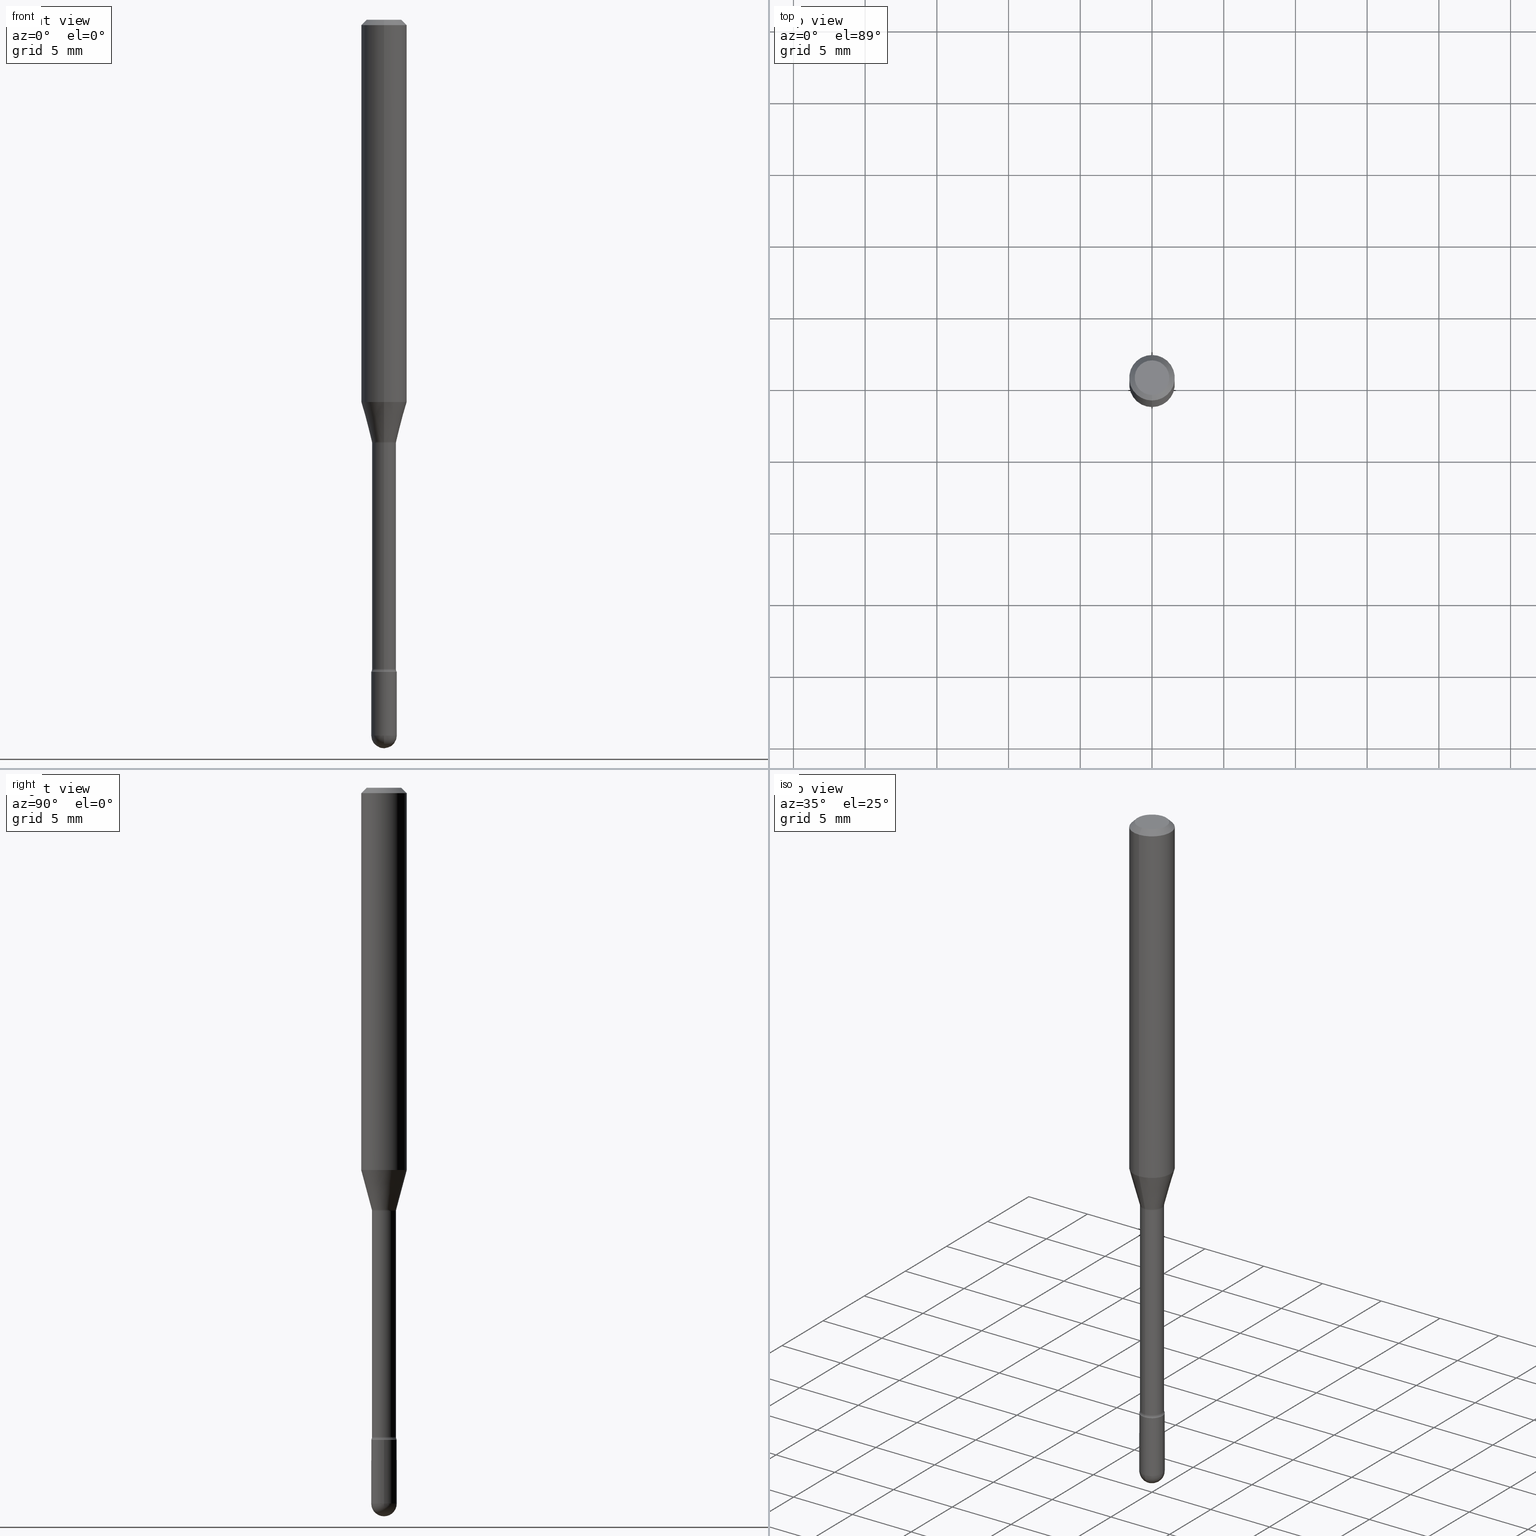
[diagram: canonical four-view strip — front | top / right | iso, engineering-drawing reading convention]
A machine part, canonical four-view strip (front | top / right | iso — engineering-drawing reading convention). The complete STEP part file that produces these views, byte-faithful:
ISO-10303-21;
HEADER;
FILE_DESCRIPTION (( 'STEP AP203' ),
    '1' );
FILE_NAME ('03739.STEP',
    '2024-04-09T20:18:21',
    ( '' ),
    ( '' ),
    'SwSTEP 2.0',
    'SolidWorks 2023',
    '' );
FILE_SCHEMA (( 'CONFIG_CONTROL_DESIGN' ));
ENDSEC;

DATA;
#1 = ORIENTED_EDGE ( 'NONE', *, *, #135, .T. ) ;
#2 = CONICAL_SURFACE ( 'NONE', #402, 0.03341111260566397706, 0.2617993877991501850 ) ;
#3 = DIRECTION ( 'NONE',  ( 0.000000000000000000, 0.000000000000000000, 1.000000000000000000 ) ) ;
#4 = AXIS2_PLACEMENT_3D ( 'NONE', #103, #432, #221 ) ;
#5 = CARTESIAN_POINT ( 'NONE',  ( -0.03500000000000000333, 2.486899575160350887E-16, -1.721627281589217108E-30 ) ) ;
#6 = APPROVAL_PERSON_ORGANIZATION ( #113, #18, #504 ) ;
#7 = EDGE_LOOP ( 'NONE', ( #16, #476 ) ) ;
#8 = APPLICATION_PROTOCOL_DEFINITION ( 'international standard', 'config_control_design', 1994, #555 ) ;
#9 = DIRECTION ( 'NONE',  ( 6.982962677686265922E-15, 1.000000000000000000, -3.483106191921935554E-15 ) ) ;
#10 = VERTEX_POINT ( 'NONE', #205 ) ;
#11 = EDGE_LOOP ( 'NONE', ( #324, #106, #195, #124 ) ) ;
#12 = DIRECTION ( 'NONE',  ( 1.000000000000000000, -6.982962677686265922E-15, 4.876176775795936353E-29 ) ) ;
#13 = FACE_OUTER_BOUND ( 'NONE', #479, .T. ) ;
#14 = CONICAL_SURFACE ( 'NONE', #247, 0.06250000000000000000, 0.7853981633974483900 ) ;
#15 = AXIS2_PLACEMENT_3D ( 'NONE', #399, #351, #526 ) ;
#16 = ORIENTED_EDGE ( 'NONE', *, *, #246, .F. ) ;
#17 = LOCAL_TIME ( 16, 18, 21.00000000000000000, #161 ) ;
#18 = APPROVAL ( #333, 'UNSPECIFIED' ) ;
#19 = EDGE_CURVE ( 'NONE', #10, #349, #251, .T. ) ;
#20 = DIRECTION ( 'NONE',  ( -6.982962677686265922E-15, -1.000000000000000000, 3.491462374089928749E-15 ) ) ;
#21 = ORIENTED_EDGE ( 'NONE', *, *, #77, .T. ) ;
#22 = AXIS2_PLACEMENT_3D ( 'NONE', #517, #133, #272 ) ;
#23 = VERTEX_POINT ( 'NONE', #253 ) ;
#24 = CARTESIAN_POINT ( 'NONE',  ( 2.566609944677887031E-29, -3.664399030748884908E-15, -1.049531296095961519 ) ) ;
#25 = VERTEX_POINT ( 'NONE', #209 ) ;
#26 = ADVANCED_FACE ( 'NONE', ( #373 ), #469, .F. ) ;
#27 = DIRECTION ( 'NONE',  ( -6.982962677686265922E-15, -1.000000000000000000, 0.000000000000000000 ) ) ;
#28 = CARTESIAN_POINT ( 'NONE',  ( 4.440892098500625669E-16, 0.06250000000000000000, 2.598570005106255658E-16 ) ) ;
#29 = CARTESIAN_POINT ( 'NONE',  ( 4.805346204153793345E-29, -6.860760830826780393E-15, -1.964999999999999858 ) ) ;
#30 = EDGE_CURVE ( 'NONE', #23, #349, #259, .T. ) ;
#31 = PERSON_AND_ORGANIZATION ( #334, #111 ) ;
#32 = AXIS2_PLACEMENT_3D ( 'NONE', #412, #200, #338 ) ;
#33 = TOROIDAL_SURFACE ( 'NONE', #453, 0.04790000000000007446, 0.01500000000000008792 ) ;
#34 = EDGE_CURVE ( 'NONE', #47, #342, #505, .T. ) ;
#35 = EDGE_LOOP ( 'NONE', ( #107, #51, #100, #537 ) ) ;
#36 = ADVANCED_FACE ( 'NONE', ( #72 ), #282, .T. ) ;
#37 = DIRECTION ( 'NONE',  ( -2.445482049201527511E-29, 3.491462374089927960E-15, 1.000000000000000000 ) ) ;
#38 = DIRECTION ( 'NONE',  ( -2.445468806185136597E-29, 3.491481338843145583E-15, 1.000000000000000000 ) ) ;
#39 = ORIENTED_EDGE ( 'NONE', *, *, #149, .T. ) ;
#40 = CIRCLE ( 'NONE', #389, 0.04749999999999999362 ) ;
#41 = AXIS2_PLACEMENT_3D ( 'NONE', #489, #146, #482 ) ;
#42 = DIRECTION ( 'NONE',  ( -6.982962677686265922E-15, -1.000000000000000000, 3.483106191921935554E-15 ) ) ;
#43 = ORIENTED_EDGE ( 'NONE', *, *, #416, .F. ) ;
#44 = VERTEX_POINT ( 'NONE', #186 ) ;
#45 = DIRECTION ( 'NONE',  ( -6.982962677686266711E-15, -1.000000000000000000, 4.088232597799138123E-15 ) ) ;
#46 = DIRECTION ( 'NONE',  ( -6.982962677686266711E-15, -1.000000000000000000, 3.491462374089928354E-15 ) ) ;
#47 = VERTEX_POINT ( 'NONE', #478 ) ;
#48 = ADVANCED_FACE ( 'NONE', ( #430 ), #472, .T. ) ;
#49 = SPHERICAL_SURFACE ( 'NONE', #156, 0.03500000000000001721 ) ;
#50 = DIRECTION ( 'NONE',  ( 1.000000000000000000, -6.982962677686276966E-15, 0.000000000000000000 ) ) ;
#51 = ORIENTED_EDGE ( 'NONE', *, *, #128, .T. ) ;
#52 = ORIENTED_EDGE ( 'NONE', *, *, #457, .F. ) ;
#53 = VECTOR ( 'NONE', #393, 39.37007874015748143 ) ;
#54 = CIRCLE ( 'NONE', #474, 0.06250000000000000000 ) ;
#55 = EDGE_LOOP ( 'NONE', ( #356, #347 ) ) ;
#56 = ADVANCED_BREP_SHAPE_REPRESENTATION ( '03739', ( #450, #440, #354 ), #524 ) ;
#57 = ORIENTED_EDGE ( 'NONE', *, *, #452, .F. ) ;
#58 = CARTESIAN_POINT ( 'NONE',  ( 0.000000000000000000, 0.000000000000000000, 0.000000000000000000 ) ) ;
#59 = VERTEX_POINT ( 'NONE', #86 ) ;
#60 = EDGE_CURVE ( 'NONE', #318, #243, #126, .T. ) ;
#61 = CARTESIAN_POINT ( 'NONE',  ( 3.403499704291320534E-16, 0.04789999999999385027, -1.782345589506696193 ) ) ;
#62 = AXIS2_PLACEMENT_3D ( 'NONE', #71, #546, #332 ) ;
#63 = CIRCLE ( 'NONE', #202, 0.06250000000000000000 ) ;
#64 = DIRECTION ( 'NONE',  ( -2.445482049201527511E-29, 3.491462374089927960E-15, 1.000000000000000000 ) ) ;
#65 = DIRECTION ( 'NONE',  ( -2.445482049201527511E-29, 3.491462374089927960E-15, 1.000000000000000000 ) ) ;
#66 = DIRECTION ( 'NONE',  ( -4.851104656540964275E-15, -0.7071067811865500152, -0.7071067811865450192 ) ) ;
#67 = CARTESIAN_POINT ( 'NONE',  ( -1.169113584055446105E-44, 1.669184350826100908E-30, 4.780733988912460139E-16 ) ) ;
#68 = DIRECTION ( 'NONE',  ( 4.937700262164548042E-15, 0.7071067811865451302, -0.7071067811865499042 ) ) ;
#69 = FACE_OUTER_BOUND ( 'NONE', #310, .T. ) ;
#70 = VECTOR ( 'NONE', #68, 39.37007874015748143 ) ;
#71 = CARTESIAN_POINT ( 'NONE',  ( 4.805346204153793345E-29, -6.860760830826780393E-15, -1.964999999999999858 ) ) ;
#72 = FACE_OUTER_BOUND ( 'NONE', #97, .T. ) ;
#73 = DIRECTION ( 'NONE',  ( -6.982962677686265922E-15, -1.000000000000000000, 4.370956789862821150E-15 ) ) ;
#74 = DIRECTION ( 'NONE',  ( -2.445482049201527511E-29, 3.491462374089927960E-15, 1.000000000000000000 ) ) ;
#75 = CARTESIAN_POINT ( 'NONE',  ( 2.832094424435664218E-29, -4.043436395705936582E-15, -1.158092501787272965 ) ) ;
#76 = CC_DESIGN_PERSON_AND_ORGANIZATION_ASSIGNMENT ( #442, #228, ( #287 ) ) ;
#77 = EDGE_CURVE ( 'NONE', #44, #318, #194, .T. ) ;
#78 = CIRCLE ( 'NONE', #119, 0.01500000000000008792 ) ;
#79 = EDGE_LOOP ( 'NONE', ( #227, #21, #138, #43, #527 ) ) ;
#80 = PERSON_AND_ORGANIZATION ( #334, #111 ) ;
#81 = AXIS2_PLACEMENT_3D ( 'NONE', #24, #463, #73 ) ;
#82 = AXIS2_PLACEMENT_3D ( 'NONE', #29, #341, #108 ) ;
#83 = CC_DESIGN_PERSON_AND_ORGANIZATION_ASSIGNMENT ( #31, #388, ( #445 ) ) ;
#84 = SECURITY_CLASSIFICATION_LEVEL ( 'unclassified' ) ;
#85 = EDGE_CURVE ( 'NONE', #308, #465, #255, .T. ) ;
#86 = CARTESIAN_POINT ( 'NONE',  ( 0.03500000000000000333, -6.799659907397025402E-15, -1.964999999999999858 ) ) ;
#87 = CARTESIAN_POINT ( 'NONE',  ( 4.358670540980283234E-29, -6.223026365132013835E-15, -1.782345589506695971 ) ) ;
#88 = VERTEX_POINT ( 'NONE', #312 ) ;
#89 = DIRECTION ( 'NONE',  ( -6.982962677686266711E-15, -1.000000000000000000, 4.151744671222284594E-15 ) ) ;
#90 = CIRCLE ( 'NONE', #415, 0.03500000000000000333 ) ;
#91 = DIRECTION ( 'NONE',  ( -2.445482049201527511E-29, 3.491462374089927960E-15, 1.000000000000000000 ) ) ;
#92 = DIRECTION ( 'NONE',  ( -2.445468806185136597E-29, 3.491481338843145583E-15, 1.000000000000000000 ) ) ;
#93 = EDGE_CURVE ( 'NONE', #25, #10, #40, .T. ) ;
#94 = ORIENTED_EDGE ( 'NONE', *, *, #457, .T. ) ;
#95 = PRODUCT_RELATED_PRODUCT_CATEGORY ( 'detail', '', ( #99 ) ) ;
#96 = DIRECTION ( 'NONE',  ( 1.000000000000000000, -6.982962677686276966E-15, 0.000000000000000000 ) ) ;
#97 = EDGE_LOOP ( 'NONE', ( #180, #297, #231, #501, #104 ) ) ;
#98 = ADVANCED_FACE ( 'NONE', ( #394 ), #14, .T. ) ;
#99 = PRODUCT ( '03739', '03739', '', ( #561 ) ) ;
#100 = ORIENTED_EDGE ( 'NONE', *, *, #34, .T. ) ;
#101 = CYLINDRICAL_SURFACE ( 'NONE', #421, 0.03289999999999999175 ) ;
#102 = LOCAL_TIME ( 16, 18, 21.00000000000000000, #511 ) ;
#103 = CARTESIAN_POINT ( 'NONE',  ( 3.316907271900976096E-16, 0.04749999999999999362, 3.181827022768983098E-17 ) ) ;
#104 = ORIENTED_EDGE ( 'NONE', *, *, #60, .F. ) ;
#105 = DIRECTION ( 'NONE',  ( 7.105427357601001859E-15, 1.000000000000000000, 0.000000000000000000 ) ) ;
#106 = ORIENTED_EDGE ( 'NONE', *, *, #509, .T. ) ;
#107 = ORIENTED_EDGE ( 'NONE', *, *, #30, .F. ) ;
#108 = DIRECTION ( 'NONE',  ( 1.000000000000000000, -6.982962677686276966E-15, 0.000000000000000000 ) ) ;
#109 = APPLICATION_CONTEXT ( 'configuration controlled 3d designs of mechanical parts and assemblies' ) ;
#110 = VECTOR ( 'NONE', #171, 39.37007874015748143 ) ;
#111 = ORGANIZATION ( 'UNSPECIFIED', 'UNSPECIFIED', '' ) ;
#112 = ORIENTED_EDGE ( 'NONE', *, *, #257, .T. ) ;
#113 = PERSON_AND_ORGANIZATION ( #334, #111 ) ;
#114 = CARTESIAN_POINT ( 'NONE',  ( -4.287811248607203282E-16, -0.06250000000000005551, -0.01499999999999986587 ) ) ;
#115 = APPROVAL_STATUS ( 'not_yet_approved' ) ;
#116 = ADVANCED_FACE ( 'NONE', ( #358 ), #153, .F. ) ;
#117 = DIRECTION ( 'NONE',  ( -6.982962677686265922E-15, -1.000000000000000000, 3.483106191921935554E-15 ) ) ;
#118 = CARTESIAN_POINT ( 'NONE',  ( -4.364351673553916201E-16, -0.06250000000000000000, 6.962897972718665114E-16 ) ) ;
#119 = AXIS2_PLACEMENT_3D ( 'NONE', #172, #417, #456 ) ;
#120 = VECTOR ( 'NONE', #230, 39.37007874015749564 ) ;
#121 = FACE_OUTER_BOUND ( 'NONE', #148, .T. ) ;
#122 = DATE_AND_TIME ( #449, #17 ) ;
#123 = DIRECTION ( 'NONE',  ( 1.000000000000000000, -6.982962677686276966E-15, 0.000000000000000000 ) ) ;
#124 = ORIENTED_EDGE ( 'NONE', *, *, #483, .F. ) ;
#125 = PERSON_AND_ORGANIZATION ( #334, #111 ) ;
#126 = CIRCLE ( 'NONE', #461, 0.03500000000000000333 ) ;
#127 = PRODUCT_DEFINITION_FORMATION_WITH_SPECIFIED_SOURCE ( 'ANY', '', #99, .NOT_KNOWN. ) ;
#128 = EDGE_CURVE ( 'NONE', #23, #47, #414, .T. ) ;
#129 = CARTESIAN_POINT ( 'NONE',  ( 3.668223073802311533E-31, -5.237193561134920955E-17, -0.01500000000000008271 ) ) ;
#130 = ORIENTED_EDGE ( 'NONE', *, *, #452, .T. ) ;
#131 = EDGE_CURVE ( 'NONE', #10, #25, #498, .T. ) ;
#132 = DIRECTION ( 'NONE',  ( -6.982962677686265922E-15, -1.000000000000000000, 0.000000000000000000 ) ) ;
#133 = DIRECTION ( 'NONE',  ( -2.445482049201527511E-29, 3.491462374089927960E-15, 1.000000000000000000 ) ) ;
#134 = CARTESIAN_POINT ( 'NONE',  ( 2.832094424435664218E-29, -4.043436395705936582E-15, -1.158092501787272965 ) ) ;
#135 = EDGE_CURVE ( 'NONE', #206, #249, #175, .T. ) ;
#136 = PERSON_AND_ORGANIZATION ( #334, #111 ) ;
#137 = LINE ( 'NONE', #225, #120 ) ;
#138 = ORIENTED_EDGE ( 'NONE', *, *, #512, .F. ) ;
#139 = ORIENTED_EDGE ( 'NONE', *, *, #521, .F. ) ;
#140 = AXIS2_PLACEMENT_3D ( 'NONE', #438, #560, #184 ) ;
#141 = AXIS2_PLACEMENT_3D ( 'NONE', #176, #292, #123 ) ;
#142 = CARTESIAN_POINT ( 'NONE',  ( 4.358694144612139545E-29, -6.222992563387760895E-15, -1.782345589506695971 ) ) ;
#143 = DIRECTION ( 'NONE',  ( 6.982962677686265922E-15, 1.000000000000000000, 0.000000000000000000 ) ) ;
#144 = DIRECTION ( 'NONE',  ( -6.982962677686265922E-15, -1.000000000000000000, 3.491462374089927960E-15 ) ) ;
#145 = DATE_AND_TIME ( #528, #331 ) ;
#146 = DIRECTION ( 'NONE',  ( -1.000000000000000000, 7.105427357601001070E-15, -4.926315508542082329E-29 ) ) ;
#147 = DIRECTION ( 'NONE',  ( 1.000000000000000000, 0.000000000000000000, 0.000000000000000000 ) ) ;
#148 = EDGE_LOOP ( 'NONE', ( #199, #556, #218, #369 ) ) ;
#149 = EDGE_CURVE ( 'NONE', #88, #249, #222, .T. ) ;
#150 = SHAPE_DEFINITION_REPRESENTATION ( #410, #56 ) ;
#151 = DATE_TIME_ROLE ( 'classification_date' ) ;
#152 = PERSON_AND_ORGANIZATION_ROLE ( 'design_owner' ) ;
#153 = PLANE ( 'NONE',  #4 ) ;
#154 = CARTESIAN_POINT ( 'NONE',  ( -1.169113584055446105E-44, 1.669184350826100908E-30, 4.780733988912460139E-16 ) ) ;
#155 = EDGE_LOOP ( 'NONE', ( #383, #531, #564, #159 ) ) ;
#156 = AXIS2_PLACEMENT_3D ( 'NONE', #387, #232, #348 ) ;
#157 = AXIS2_PLACEMENT_3D ( 'NONE', #212, #278, #496 ) ;
#158 = CARTESIAN_POINT ( 'NONE',  ( 2.486899575160792649E-16, 0.03499999999999380690, -1.790000000000000258 ) ) ;
#159 = ORIENTED_EDGE ( 'NONE', *, *, #19, .F. ) ;
#160 = ORIENTED_EDGE ( 'NONE', *, *, #323, .T. ) ;
#161 = COORDINATED_UNIVERSAL_TIME_OFFSET ( 5, 0, .BEHIND. ) ;
#162 = DIRECTION ( 'NONE',  ( -2.445482049201527511E-29, 3.491462374089927960E-15, 1.000000000000000000 ) ) ;
#163 = LINE ( 'NONE', #214, #237 ) ;
#164 = APPROVAL_ROLE ( '' ) ;
#165 = FACE_OUTER_BOUND ( 'NONE', #481, .T. ) ;
#166 = CIRCLE ( 'NONE', #82, 0.03500000000000000333 ) ;
#167 = CC_DESIGN_APPROVAL ( #548, ( #445 ) ) ;
#168 = CARTESIAN_POINT ( 'NONE',  ( 4.377412868070734097E-29, -6.249717649620971805E-15, -1.790000000000000036 ) ) ;
#169 = PERSON_AND_ORGANIZATION ( #334, #111 ) ;
#170 = PLANE ( 'NONE',  #371 ) ;
#171 = DIRECTION ( 'NONE',  ( -2.445482049201527511E-29, 3.491462374089927960E-15, 1.000000000000000000 ) ) ;
#172 = CARTESIAN_POINT ( 'NONE',  ( -3.344839122611290224E-16, -0.04790000000000629171, -1.782345589506695749 ) ) ;
#173 = DIRECTION ( 'NONE',  ( -6.982962677686266711E-15, -1.000000000000000000, 4.088232597799138123E-15 ) ) ;
#174 = EDGE_CURVE ( 'NONE', #550, #277, #261, .T. ) ;
#175 = CIRCLE ( 'NONE', #279, 0.01499999999999999424 ) ;
#176 = CARTESIAN_POINT ( 'NONE',  ( 4.805346204153793345E-29, -6.860760830826780393E-15, -1.964999999999999858 ) ) ;
#177 = AXIS2_PLACEMENT_3D ( 'NONE', #454, #65, #542 ) ;
#178 = DESIGN_CONTEXT ( 'detailed design', #109, 'design' ) ;
#179 = CC_DESIGN_PERSON_AND_ORGANIZATION_ASSIGNMENT ( #169, #152, ( #99 ) ) ;
#180 = ORIENTED_EDGE ( 'NONE', *, *, #77, .F. ) ;
#181 = CLOSED_SHELL ( 'NONE', ( #219, #367, #197, #48, #360, #350, #336, #549, #98, #116, #204, #468, #516, #26 ) ) ;
#182 = DIRECTION ( 'NONE',  ( -2.445482049201527511E-29, 3.491462374089927960E-15, 1.000000000000000000 ) ) ;
#183 = ADVANCED_FACE ( 'NONE', ( #293 ), #376, .T. ) ;
#184 = DIRECTION ( 'NONE',  ( -6.982962677686265922E-15, -1.000000000000000000, 0.000000000000000000 ) ) ;
#185 = DIRECTION ( 'NONE',  ( 1.000000000000000000, -6.982962677686276966E-15, 0.000000000000000000 ) ) ;
#186 = CARTESIAN_POINT ( 'NONE',  ( -0.03500000000000000333, -6.306566256161970939E-15, -1.964999999999999858 ) ) ;
#187 = ORIENTED_EDGE ( 'NONE', *, *, #149, .F. ) ;
#188 = ORIENTED_EDGE ( 'NONE', *, *, #345, .F. ) ;
#189 = AXIS2_PLACEMENT_3D ( 'NONE', #268, #398, #143 ) ;
#190 = DATE_AND_TIME ( #490, #102 ) ;
#191 = CARTESIAN_POINT ( 'NONE',  ( -2.297394720958781034E-16, -0.03289999999999999175, 5.929425109988046671E-16 ) ) ;
#192 = LINE ( 'NONE', #447, #554 ) ;
#193 = ORIENTED_EDGE ( 'NONE', *, *, #131, .T. ) ;
#194 = LINE ( 'NONE', #5, #444 ) ;
#195 = ORIENTED_EDGE ( 'NONE', *, *, #397, .F. ) ;
#196 = CC_DESIGN_PERSON_AND_ORGANIZATION_ASSIGNMENT ( #125, #467, ( #127 ) ) ;
#197 = ADVANCED_FACE ( 'NONE', ( #121 ), #216, .F. ) ;
#198 = CYLINDRICAL_SURFACE ( 'NONE', #15, 0.03289999999999999175 ) ;
#199 = ORIENTED_EDGE ( 'NONE', *, *, #323, .F. ) ;
#200 = DIRECTION ( 'NONE',  ( -2.445482049201527511E-29, 3.491462374089927960E-15, 1.000000000000000000 ) ) ;
#201 = CIRCLE ( 'NONE', #507, 0.03289999999999998481 ) ;
#202 = AXIS2_PLACEMENT_3D ( 'NONE', #566, #182, #42 ) ;
#203 = ORIENTED_EDGE ( 'NONE', *, *, #135, .F. ) ;
#204 = ADVANCED_FACE ( 'NONE', ( #366 ), #170, .F. ) ;
#205 = CARTESIAN_POINT ( 'NONE',  ( 3.840629472727447874E-16, 0.04749999999999999362, -2.485923956665947374E-16 ) ) ;
#206 = VERTEX_POINT ( 'NONE', #258 ) ;
#207 = DIRECTION ( 'NONE',  ( 7.105427357600997914E-15, 1.000000000000000000, 0.000000000000000000 ) ) ;
#208 = DIRECTION ( 'NONE',  ( -2.445482049201527231E-29, 3.491462374089927960E-15, 1.000000000000000000 ) ) ;
#209 = CARTESIAN_POINT ( 'NONE',  ( -3.773273898774340269E-16, -0.04749999999999999362, 8.309652987194840546E-17 ) ) ;
#210 = AXIS2_PLACEMENT_3D ( 'NONE', #154, #486, #534 ) ;
#211 = ORIENTED_EDGE ( 'NONE', *, *, #483, .T. ) ;
#212 = CARTESIAN_POINT ( 'NONE',  ( 2.832094424435664218E-29, -4.043436395705936582E-15, -1.158092501787272965 ) ) ;
#213 = CARTESIAN_POINT ( 'NONE',  ( -2.297394720958497537E-16, -0.03290000000000405794, -1.161974787463810443 ) ) ;
#214 = CARTESIAN_POINT ( 'NONE',  ( 0.03500000000000000333, -2.444036937190193250E-16, 1.706661871528577808E-30 ) ) ;
#215 = ADVANCED_FACE ( 'NONE', ( #552 ), #335, .T. ) ;
#216 = TOROIDAL_SURFACE ( 'NONE', #270, 0.04790000000000007446, 0.01500000000000008792 ) ;
#217 = AXIS2_PLACEMENT_3D ( 'NONE', #530, #273, #239 ) ;
#218 = ORIENTED_EDGE ( 'NONE', *, *, #174, .T. ) ;
#219 = ADVANCED_FACE ( 'NONE', ( #165 ), #523, .F. ) ;
#220 = APPROVAL_STATUS ( 'not_yet_approved' ) ;
#221 = DIRECTION ( 'NONE',  ( 6.982962677686265922E-15, 1.000000000000000000, -3.491462374089927960E-15 ) ) ;
#222 = CIRCLE ( 'NONE', #309, 0.03289999999999999869 ) ;
#223 = CIRCLE ( 'NONE', #462, 0.01499999999999999424 ) ;
#224 = DIRECTION ( 'NONE',  ( -2.445482049201527511E-29, 3.491462374089927960E-15, 1.000000000000000000 ) ) ;
#225 = CARTESIAN_POINT ( 'NONE',  ( -2.333085523452963922E-16, -0.03341111260566802243, -1.158092501787272965 ) ) ;
#226 = DIRECTION ( 'NONE',  ( -2.445482049201527511E-29, 3.491462374089927960E-15, 1.000000000000000000 ) ) ;
#227 = ORIENTED_EDGE ( 'NONE', *, *, #495, .T. ) ;
#228 = PERSON_AND_ORGANIZATION_ROLE ( 'creator' ) ;
#229 = CARTESIAN_POINT ( 'NONE',  ( -4.364351673553912750E-16, -0.06250000000000005551, -0.01499999999999986587 ) ) ;
#230 = DIRECTION ( 'NONE',  ( -1.807323732225329350E-15, -0.2588190451025180194, 0.9659258262890689783 ) ) ;
#231 = ORIENTED_EDGE ( 'NONE', *, *, #491, .T. ) ;
#232 = DIRECTION ( 'NONE',  ( -1.000000000000000000, 6.982962677686265922E-15, -4.883557194083112340E-29 ) ) ;
#233 = DIRECTION ( 'NONE',  ( -2.445468806185136877E-29, 3.491481338843145188E-15, 1.000000000000000000 ) ) ;
#234 = CARTESIAN_POINT ( 'NONE',  ( 2.337685600650729025E-16, 0.03289999999999999175, 3.632042867836874593E-16 ) ) ;
#235 = ORIENTED_EDGE ( 'NONE', *, *, #392, .T. ) ;
#236 = AXIS2_PLACEMENT_3D ( 'NONE', #129, #260, #425 ) ;
#237 = VECTOR ( 'NONE', #497, 39.37007874015748143 ) ;
#238 = FACE_OUTER_BOUND ( 'NONE', #35, .T. ) ;
#239 = DIRECTION ( 'NONE',  ( 1.000000000000000000, -6.982962677686276966E-15, 0.000000000000000000 ) ) ;
#240 = ORIENTED_EDGE ( 'NONE', *, *, #436, .T. ) ;
#241 = CYLINDRICAL_SURFACE ( 'NONE', #210, 0.06250000000000000000 ) ;
#242 = DIRECTION ( 'NONE',  ( 1.839019923739599526E-15, 0.2588190451025248473, 0.9659258262890670910 ) ) ;
#243 = VERTEX_POINT ( 'NONE', #329 ) ;
#244 = DIRECTION ( 'NONE',  ( 1.000000000000000000, -7.105427357601001070E-15, 4.926315276290838979E-29 ) ) ;
#245 = ORIENTED_EDGE ( 'NONE', *, *, #475, .T. ) ;
#246 = EDGE_CURVE ( 'NONE', #277, #550, #485, .T. ) ;
#247 = AXIS2_PLACEMENT_3D ( 'NONE', #346, #434, #9 ) ;
#248 = AXIS2_PLACEMENT_3D ( 'NONE', #75, #226, #173 ) ;
#249 = VERTEX_POINT ( 'NONE', #213 ) ;
#250 = DIRECTION ( 'NONE',  ( -6.982962677686265133E-15, -1.000000000000000000, 3.491462374089927565E-15 ) ) ;
#251 = LINE ( 'NONE', #499, #70 ) ;
#252 = DIRECTION ( 'NONE',  ( 1.000000000000000000, -7.105427357601001070E-15, 4.926315276290838979E-29 ) ) ;
#253 = CARTESIAN_POINT ( 'NONE',  ( 4.440892098500882541E-16, 0.06249999999999633626, -1.049531296095961741 ) ) ;
#254 = DIRECTION ( 'NONE',  ( 1.000000000000000000, -6.982962677686265922E-15, 4.876176775795935793E-29 ) ) ;
#255 = CIRCLE ( 'NONE', #189, 0.03500000000000001721 ) ;
#256 = CIRCLE ( 'NONE', #157, 0.03341111260566397706 ) ;
#257 = EDGE_CURVE ( 'NONE', #470, #277, #78, .T. ) ;
#258 = CARTESIAN_POINT ( 'NONE',  ( -2.333085523452963922E-16, -0.03341111260566802243, -1.158092501787272965 ) ) ;
#259 = LINE ( 'NONE', #28, #110 ) ;
#260 = DIRECTION ( 'NONE',  ( 2.445482049201527511E-29, -3.491462374089927960E-15, -1.000000000000000000 ) ) ;
#261 = CIRCLE ( 'NONE', #32, 0.03500000000000000333 ) ;
#262 = CONICAL_SURFACE ( 'NONE', #403, 0.03341111260566397706, 0.2617993877991501850 ) ;
#263 = CARTESIAN_POINT ( 'NONE',  ( 4.892434153376336703E-29, -6.980819545787783111E-15, -2.000000000000000000 ) ) ;
#264 = EDGE_CURVE ( 'NONE', #25, #342, #502, .T. ) ;
#265 = DIRECTION ( 'NONE',  ( -2.445482049201527511E-29, 3.491462374089927960E-15, 1.000000000000000000 ) ) ;
#266 =( NAMED_UNIT ( * ) SI_UNIT ( $, .STERADIAN. ) SOLID_ANGLE_UNIT ( ) );
#267 = CARTESIAN_POINT ( 'NONE',  ( -0.03500000000000000333, -6.306566256161970939E-15, -1.790000000000000036 ) ) ;
#268 = CARTESIAN_POINT ( 'NONE',  ( 4.805346204153793345E-29, -6.860760830826780393E-15, -1.964999999999999858 ) ) ;
#269 = CC_DESIGN_DATE_AND_TIME_ASSIGNMENT ( #190, #151, ( #445 ) ) ;
#270 = AXIS2_PLACEMENT_3D ( 'NONE', #298, #74, #379 ) ;
#271 = CIRCLE ( 'NONE', #217, 0.03500000000000000333 ) ;
#272 = DIRECTION ( 'NONE',  ( -6.982962677686265922E-15, -1.000000000000000000, 4.370956789862821150E-15 ) ) ;
#273 = DIRECTION ( 'NONE',  ( -2.445468806185136597E-29, 3.491481338843145583E-15, 1.000000000000000000 ) ) ;
#274 = ORIENTED_EDGE ( 'NONE', *, *, #547, .F. ) ;
#275 = EDGE_LOOP ( 'NONE', ( #553, #378, #431, #540 ) ) ;
#276 = LINE ( 'NONE', #234, #508 ) ;
#277 = VERTEX_POINT ( 'NONE', #458 ) ;
#278 = DIRECTION ( 'NONE',  ( -2.445482049201527511E-29, 3.491462374089927960E-15, 1.000000000000000000 ) ) ;
#279 = AXIS2_PLACEMENT_3D ( 'NONE', #364, #286, #368 ) ;
#280 = CIRCLE ( 'NONE', #141, 0.03500000000000000333 ) ;
#281 =( LENGTH_UNIT ( ) NAMED_UNIT ( * ) SI_UNIT ( $, .METRE. ) );
#282 = CYLINDRICAL_SURFACE ( 'NONE', #299, 0.03500000000000000333 ) ;
#283 = CYLINDRICAL_SURFACE ( 'NONE', #372, 0.03500000000000000333 ) ;
#284 = CARTESIAN_POINT ( 'NONE',  ( 0.000000000000000000, 0.000000000000000000, 0.000000000000000000 ) ) ;
#285 = ORIENTED_EDGE ( 'NONE', *, *, #85, .F. ) ;
#286 = DIRECTION ( 'NONE',  ( -1.000000000000000000, 6.982962677686265922E-15, -4.883557194083112340E-29 ) ) ;
#287 = PRODUCT_DEFINITION ( 'UNKNOWN', '', #127, #178 ) ;
#288 = ADVANCED_FACE ( 'NONE', ( #69 ), #49, .T. ) ;
#289 = CARTESIAN_POINT ( 'NONE',  ( 4.377389163071394665E-29, -6.249751596529231267E-15, -1.790000000000000036 ) ) ;
#290 = CYLINDRICAL_SURFACE ( 'NONE', #177, 0.06250000000000000000 ) ;
#291 = AXIS2_PLACEMENT_3D ( 'NONE', #525, #92, #185 ) ;
#292 = DIRECTION ( 'NONE',  ( -2.445468806185136597E-29, 3.491481338843145583E-15, 1.000000000000000000 ) ) ;
#293 = FACE_OUTER_BOUND ( 'NONE', #413, .T. ) ;
#294 = DATE_TIME_ROLE ( 'creation_date' ) ;
#295 = COORDINATED_UNIVERSAL_TIME_OFFSET ( 5, 0, .BEHIND. ) ;
#296 = APPROVAL ( #115, 'UNSPECIFIED' ) ;
#297 = ORIENTED_EDGE ( 'NONE', *, *, #429, .T. ) ;
#298 = CARTESIAN_POINT ( 'NONE',  ( 4.358670540980283234E-29, -6.223026365132013835E-15, -1.782345589506695971 ) ) ;
#299 = AXIS2_PLACEMENT_3D ( 'NONE', #406, #518, #437 ) ;
#300 = DIRECTION ( 'NONE',  ( -2.445482049201527511E-29, 3.491462374089927960E-15, 1.000000000000000000 ) ) ;
#301 = CIRCLE ( 'NONE', #81, 0.06250000000000000000 ) ;
#302 = EDGE_CURVE ( 'NONE', #470, #249, #529, .T. ) ;
#303 = CC_DESIGN_PERSON_AND_ORGANIZATION_ASSIGNMENT ( #80, #464, ( #127 ) ) ;
#304 = ORIENTED_EDGE ( 'NONE', *, *, #131, .F. ) ;
#305 = CLOSED_SHELL ( 'NONE', ( #459, #183, #215, #288, #36 ) ) ;
#306 = CC_DESIGN_APPROVAL ( #296, ( #127 ) ) ;
#307 = CARTESIAN_POINT ( 'NONE',  ( 2.023649156427938517E-45, -2.889022277006922147E-31, -8.274793289732315981E-17 ) ) ;
#308 = VERTEX_POINT ( 'NONE', #263 ) ;
#309 = AXIS2_PLACEMENT_3D ( 'NONE', #466, #559, #89 ) ;
#310 = EDGE_LOOP ( 'NONE', ( #52, #544, #139, #439 ) ) ;
#311 = APPROVAL_DATE_TIME ( #145, #18 ) ;
#312 = CARTESIAN_POINT ( 'NONE',  ( 2.337685600651166843E-16, 0.03289999999999595331, -1.161974787463810888 ) ) ;
#313 = CARTESIAN_POINT ( 'NONE',  ( 3.668223073802311533E-31, -5.237193561134920955E-17, -0.01500000000000008271 ) ) ;
#314 = CARTESIAN_POINT ( 'NONE',  ( 2.412292587905979007E-16, 0.03289999999999376062, -1.782345589506695971 ) ) ;
#315 = EDGE_CURVE ( 'NONE', #470, #519, #201, .T. ) ;
#316 = ORIENTED_EDGE ( 'NONE', *, *, #509, .F. ) ;
#317 = CC_DESIGN_DATE_AND_TIME_ASSIGNMENT ( #418, #294, ( #287 ) ) ;
#318 = VERTEX_POINT ( 'NONE', #267 ) ;
#319 = CARTESIAN_POINT ( 'NONE',  ( 2.832094424435664218E-29, -4.043436395705936582E-15, -1.158092501787272965 ) ) ;
#320 = APPLICATION_PROTOCOL_DEFINITION ( 'international standard', 'config_control_design', 1994, #109 ) ;
#321 = ORIENTED_EDGE ( 'NONE', *, *, #380, .F. ) ;
#322 = AXIS2_PLACEMENT_3D ( 'NONE', #168, #423, #27 ) ;
#323 = EDGE_CURVE ( 'NONE', #519, #470, #339, .T. ) ;
#324 = ORIENTED_EDGE ( 'NONE', *, *, #547, .T. ) ;
#325 = CARTESIAN_POINT ( 'NONE',  ( 2.444036937190673962E-16, 0.03499999999999315464, -1.964999999999999858 ) ) ;
#326 = ORIENTED_EDGE ( 'NONE', *, *, #246, .T. ) ;
#327 = EDGE_LOOP ( 'NONE', ( #193, #362 ) ) ;
#328 = COORDINATED_UNIVERSAL_TIME_OFFSET ( 5, 0, .BEHIND. ) ;
#329 = CARTESIAN_POINT ( 'NONE',  ( 0.03500000000000000333, -6.494155290248250444E-15, -1.790000000000000036 ) ) ;
#330 = VECTOR ( 'NONE', #66, 39.37007874015748143 ) ;
#331 = LOCAL_TIME ( 16, 18, 21.00000000000000000, #295 ) ;
#332 = DIRECTION ( 'NONE',  ( 6.982962677686265922E-15, 1.000000000000000000, 0.000000000000000000 ) ) ;
#333 = APPROVAL_STATUS ( 'not_yet_approved' ) ;
#334 = PERSON ( 'UNSPECIFIED', 'UNSPECIFIED', 'UNSPECIFIED', ('UNSPECIFIED'), ('UNSPECIFIED'), ('UNSPECIFIED') ) ;
#335 = PLANE ( 'NONE',  #382 ) ;
#336 = ADVANCED_FACE ( 'NONE', ( #520 ), #2, .T. ) ;
#337 = DIRECTION ( 'NONE',  ( -6.982962677686265133E-15, -1.000000000000000000, 3.491462374089927565E-15 ) ) ;
#338 = DIRECTION ( 'NONE',  ( -6.982962677686265922E-15, -1.000000000000000000, 0.000000000000000000 ) ) ;
#339 = CIRCLE ( 'NONE', #140, 0.03289999999999998481 ) ;
#340 = AXIS2_PLACEMENT_3D ( 'NONE', #551, #506, #510 ) ;
#341 = DIRECTION ( 'NONE',  ( -2.445468806185136597E-29, 3.491481338843145583E-15, 1.000000000000000000 ) ) ;
#342 = VERTEX_POINT ( 'NONE', #229 ) ;
#343 = CARTESIAN_POINT ( 'NONE',  ( 4.377389163071394665E-29, -6.249751596529231267E-15, -1.790000000000000036 ) ) ;
#344 = LOCAL_TIME ( 16, 18, 21.00000000000000000, #328 ) ;
#345 = EDGE_CURVE ( 'NONE', #519, #550, #352, .T. ) ;
#346 = CARTESIAN_POINT ( 'NONE',  ( 3.668223073802311533E-31, -5.237193561134920955E-17, -0.01500000000000008271 ) ) ;
#347 = ORIENTED_EDGE ( 'NONE', *, *, #60, .T. ) ;
#348 = DIRECTION ( 'NONE',  ( 6.982962677686265922E-15, 1.000000000000000000, 0.000000000000000000 ) ) ;
#349 = VERTEX_POINT ( 'NONE', #357 ) ;
#350 = ADVANCED_FACE ( 'NONE', ( #532 ), #262, .T. ) ;
#351 = DIRECTION ( 'NONE',  ( -2.445482049201527511E-29, 3.491462374089927960E-15, 1.000000000000000000 ) ) ;
#352 = CIRCLE ( 'NONE', #543, 0.01500000000000008792 ) ;
#353 = EDGE_LOOP ( 'NONE', ( #188, #533, #112, #326 ) ) ;
#354 = AXIS2_PLACEMENT_3D ( 'NONE', #284, #3, #147 ) ;
#355 = CARTESIAN_POINT ( 'NONE',  ( 2.023649156427938517E-45, -2.889022277006922147E-31, -8.274793289732315981E-17 ) ) ;
#356 = ORIENTED_EDGE ( 'NONE', *, *, #512, .T. ) ;
#357 = CARTESIAN_POINT ( 'NONE',  ( 4.440892098500883528E-16, 0.06249999999999993755, -0.01500000000000030129 ) ) ;
#358 = FACE_OUTER_BOUND ( 'NONE', #327, .T. ) ;
#359 = ORIENTED_EDGE ( 'NONE', *, *, #30, .T. ) ;
#360 = ADVANCED_FACE ( 'NONE', ( #13 ), #290, .T. ) ;
#361 = DIRECTION ( 'NONE',  ( -6.982962677686266711E-15, -1.000000000000000000, 4.088232597799138123E-15 ) ) ;
#362 = ORIENTED_EDGE ( 'NONE', *, *, #93, .T. ) ;
#363 = AXIS2_PLACEMENT_3D ( 'NONE', #460, #64, #250 ) ;
#364 = CARTESIAN_POINT ( 'NONE',  ( -3.344839122611437642E-16, -0.04790000000000405739, -1.161974787463810665 ) ) ;
#365 = EDGE_LOOP ( 'NONE', ( #409, #160, #492, #187 ) ) ;
#366 = FACE_OUTER_BOUND ( 'NONE', #7, .T. ) ;
#367 = ADVANCED_FACE ( 'NONE', ( #484 ), #101, .T. ) ;
#368 = DIRECTION ( 'NONE',  ( -6.982962677686266711E-15, -1.000000000000000000, 0.000000000000000000 ) ) ;
#369 = ORIENTED_EDGE ( 'NONE', *, *, #257, .F. ) ;
#370 = DIRECTION ( 'NONE',  ( -6.982962677686265922E-15, -1.000000000000000000, 3.491462374089927960E-15 ) ) ;
#371 = AXIS2_PLACEMENT_3D ( 'NONE', #538, #208, #370 ) ;
#372 = AXIS2_PLACEMENT_3D ( 'NONE', #58, #411, #12 ) ;
#373 = FACE_OUTER_BOUND ( 'NONE', #407, .T. ) ;
#374 = ORIENTED_EDGE ( 'NONE', *, *, #264, .F. ) ;
#375 = CARTESIAN_POINT ( 'NONE',  ( 3.407447217031445109E-16, 0.03341111260565993862, -1.158092501787273187 ) ) ;
#376 = SPHERICAL_SURFACE ( 'NONE', #62, 0.03500000000000001721 ) ;
#377 = CARTESIAN_POINT ( 'NONE',  ( 2.841573096316353332E-29, -4.057013286636126142E-15, -1.161974787463810888 ) ) ;
#378 = ORIENTED_EDGE ( 'NONE', *, *, #503, .T. ) ;
#379 = DIRECTION ( 'NONE',  ( -6.982962677686265922E-15, -1.000000000000000000, 3.491462374089927960E-15 ) ) ;
#380 = EDGE_CURVE ( 'NONE', #342, #349, #54, .T. ) ;
#381 = CARTESIAN_POINT ( 'NONE',  ( -2.486899575159870668E-16, -0.03500000000000687284, -1.964999999999999858 ) ) ;
#382 = AXIS2_PLACEMENT_3D ( 'NONE', #289, #541, #254 ) ;
#383 = ORIENTED_EDGE ( 'NONE', *, *, #93, .F. ) ;
#384 = DIRECTION ( 'NONE',  ( -2.445468806185136597E-29, 3.491481338843145583E-15, 1.000000000000000000 ) ) ;
#385 = ORIENTED_EDGE ( 'NONE', *, *, #19, .T. ) ;
#386 =( NAMED_UNIT ( * ) PLANE_ANGLE_UNIT ( ) SI_UNIT ( $, .RADIAN. ) );
#387 = CARTESIAN_POINT ( 'NONE',  ( 4.805346204153793345E-29, -6.860760830826780393E-15, -1.964999999999999858 ) ) ;
#388 = PERSON_AND_ORGANIZATION_ROLE ( 'classification_officer' ) ;
#389 = AXIS2_PLACEMENT_3D ( 'NONE', #355, #562, #473 ) ;
#390 = APPROVAL_ROLE ( '' ) ;
#391 = CC_DESIGN_APPROVAL ( #18, ( #287 ) ) ;
#392 = EDGE_CURVE ( 'NONE', #249, #88, #557, .T. ) ;
#393 = DIRECTION ( 'NONE',  ( -2.445482049201527511E-29, 3.491462374089927960E-15, 1.000000000000000000 ) ) ;
#394 = FACE_OUTER_BOUND ( 'NONE', #488, .T. ) ;
#395 = VERTEX_POINT ( 'NONE', #375 ) ;
#396 = COORDINATED_UNIVERSAL_TIME_OFFSET ( 5, 0, .BEHIND. ) ;
#397 = EDGE_CURVE ( 'NONE', #47, #23, #301, .T. ) ;
#398 = DIRECTION ( 'NONE',  ( 1.000000000000000000, -6.982962677686265922E-15, 4.883557194083112340E-29 ) ) ;
#399 = CARTESIAN_POINT ( 'NONE',  ( -1.169113584055446105E-44, 1.669184350826100908E-30, 4.780733988912460139E-16 ) ) ;
#400 = ORIENTED_EDGE ( 'NONE', *, *, #128, .F. ) ;
#401 = DIRECTION ( 'NONE',  ( -2.445482049201527511E-29, 3.491462374089927960E-15, 1.000000000000000000 ) ) ;
#402 = AXIS2_PLACEMENT_3D ( 'NONE', #134, #91, #45 ) ;
#403 = AXIS2_PLACEMENT_3D ( 'NONE', #319, #162, #361 ) ;
#404 = ORIENTED_EDGE ( 'NONE', *, *, #34, .F. ) ;
#405 = CIRCLE ( 'NONE', #248, 0.03341111260566397706 ) ;
#406 = CARTESIAN_POINT ( 'NONE',  ( 0.000000000000000000, 0.000000000000000000, 0.000000000000000000 ) ) ;
#407 = EDGE_LOOP ( 'NONE', ( #422, #274, #1, #235 ) ) ;
#408 = LENGTH_MEASURE_WITH_UNIT ( LENGTH_MEASURE( 0.02539999999999999897 ), #281 );
#409 = ORIENTED_EDGE ( 'NONE', *, *, #503, .F. ) ;
#410 = PRODUCT_DEFINITION_SHAPE ( 'NONE', 'NONE',  #287 ) ;
#411 = DIRECTION ( 'NONE',  ( -2.445468806185136597E-29, 3.491481338843145583E-15, 1.000000000000000000 ) ) ;
#412 = CARTESIAN_POINT ( 'NONE',  ( 4.377412868070734097E-29, -6.249717649620971805E-15, -1.790000000000000036 ) ) ;
#413 = EDGE_LOOP ( 'NONE', ( #285, #94, #522, #536 ) ) ;
#414 = CIRCLE ( 'NONE', #22, 0.06250000000000000000 ) ;
#415 = AXIS2_PLACEMENT_3D ( 'NONE', #477, #384, #96 ) ;
#416 = EDGE_CURVE ( 'NONE', #59, #243, #163, .T. ) ;
#417 = DIRECTION ( 'NONE',  ( -1.000000000000000000, 6.982962677686265922E-15, -4.883557194083112340E-29 ) ) ;
#418 = DATE_AND_TIME ( #565, #514 ) ;
#419 = PERSON_AND_ORGANIZATION ( #334, #111 ) ;
#420 = AXIS2_PLACEMENT_3D ( 'NONE', #307, #224, #46 ) ;
#421 = AXIS2_PLACEMENT_3D ( 'NONE', #67, #500, #20 ) ;
#422 = ORIENTED_EDGE ( 'NONE', *, *, #436, .F. ) ;
#423 = DIRECTION ( 'NONE',  ( -2.445482049201527511E-29, 3.491462374089927960E-15, 1.000000000000000000 ) ) ;
#424 = DIRECTION ( 'NONE',  ( -2.445482049201527511E-29, 3.491462374089927960E-15, 1.000000000000000000 ) ) ;
#425 = DIRECTION ( 'NONE',  ( 6.982962677686265922E-15, 1.000000000000000000, -3.483106191921935554E-15 ) ) ;
#426 = VECTOR ( 'NONE', #300, 39.37007874015748143 ) ;
#427 = UNCERTAINTY_MEASURE_WITH_UNIT (LENGTH_MEASURE( 1.000000000000000082E-05 ), #515, 'distance_accuracy_value', 'NONE');
#428 = VERTEX_POINT ( 'NONE', #381 ) ;
#429 = EDGE_CURVE ( 'NONE', #44, #428, #280, .T. ) ;
#430 = FACE_OUTER_BOUND ( 'NONE', #155, .T. ) ;
#431 = ORIENTED_EDGE ( 'NONE', *, *, #392, .F. ) ;
#432 = DIRECTION ( 'NONE',  ( 2.445482049201527231E-29, -3.491462374089927960E-15, -1.000000000000000000 ) ) ;
#433 = CALENDAR_DATE ( 2024, 9, 4 ) ;
#434 = DIRECTION ( 'NONE',  ( 2.445482049201527511E-29, -3.491462374089927960E-15, -1.000000000000000000 ) ) ;
#435 = CIRCLE ( 'NONE', #291, 0.03500000000000000333 ) ;
#436 = EDGE_CURVE ( 'NONE', #395, #88, #223, .T. ) ;
#437 = DIRECTION ( 'NONE',  ( 1.000000000000000000, -6.982962677686265922E-15, 4.876176775795936353E-29 ) ) ;
#438 = CARTESIAN_POINT ( 'NONE',  ( 4.358694144612139545E-29, -6.222992563387760895E-15, -1.782345589506695971 ) ) ;
#439 = ORIENTED_EDGE ( 'NONE', *, *, #491, .F. ) ;
#440 = MANIFOLD_SOLID_BREP ( 'Body-Move/Copy2[2]', #181 ) ;
#441 = EDGE_LOOP ( 'NONE', ( #316, #130, #211, #400 ) ) ;
#442 = PERSON_AND_ORGANIZATION ( #334, #111 ) ;
#443 = DIRECTION ( 'NONE',  ( -2.445482049201527511E-29, 3.491462374089927960E-15, 1.000000000000000000 ) ) ;
#444 = VECTOR ( 'NONE', #233, 39.37007874015748143 ) ;
#445 = SECURITY_CLASSIFICATION ( '', '', #84 ) ;
#446 = FACE_OUTER_BOUND ( 'NONE', #79, .T. ) ;
#447 = CARTESIAN_POINT ( 'NONE',  ( 2.374002335562008169E-16, 0.03341111260565993862, -1.158092501787273187 ) ) ;
#448 = ORIENTED_EDGE ( 'NONE', *, *, #397, .T. ) ;
#449 = CALENDAR_DATE ( 2024, 9, 4 ) ;
#450 = MANIFOLD_SOLID_BREP ( 'Body-Move/Copy2[1]', #305 ) ;
#451 = AXIS2_PLACEMENT_3D ( 'NONE', #377, #424, #337 ) ;
#452 = EDGE_CURVE ( 'NONE', #395, #206, #256, .T. ) ;
#453 = AXIS2_PLACEMENT_3D ( 'NONE', #87, #265, #144 ) ;
#454 = CARTESIAN_POINT ( 'NONE',  ( -1.169113584055446105E-44, 1.669184350826100908E-30, 4.780733988912460139E-16 ) ) ;
#455 = CARTESIAN_POINT ( 'NONE',  ( 3.403499704291163255E-16, 0.04789999999999594582, -1.161974787463810888 ) ) ;
#456 = DIRECTION ( 'NONE',  ( -6.982962677686267499E-15, -1.000000000000000000, 0.000000000000000000 ) ) ;
#457 = EDGE_CURVE ( 'NONE', #308, #428, #535, .T. ) ;
#458 = CARTESIAN_POINT ( 'NONE',  ( -2.444036937189759377E-16, -0.03500000000000630385, -1.789999999999999813 ) ) ;
#459 = ADVANCED_FACE ( 'NONE', ( #446 ), #283, .T. ) ;
#460 = CARTESIAN_POINT ( 'NONE',  ( 2.841573096316353332E-29, -4.057013286636126142E-15, -1.161974787463810888 ) ) ;
#461 = AXIS2_PLACEMENT_3D ( 'NONE', #343, #38, #50 ) ;
#462 = AXIS2_PLACEMENT_3D ( 'NONE', #455, #252, #207 ) ;
#463 = DIRECTION ( 'NONE',  ( -2.445482049201527511E-29, 3.491462374089927960E-15, 1.000000000000000000 ) ) ;
#464 = PERSON_AND_ORGANIZATION_ROLE ( 'design_supplier' ) ;
#465 = VERTEX_POINT ( 'NONE', #325 ) ;
#466 = CARTESIAN_POINT ( 'NONE',  ( 2.841588484367509022E-29, -4.056991250071036384E-15, -1.161974787463810665 ) ) ;
#467 = PERSON_AND_ORGANIZATION_ROLE ( 'creator' ) ;
#468 = ADVANCED_FACE ( 'NONE', ( #494 ), #33, .F. ) ;
#469 = TOROIDAL_SURFACE ( 'NONE', #451, 0.04790000000000000507, 0.01499999999999999077 ) ;
#470 = VERTEX_POINT ( 'NONE', #563 ) ;
#471 = DATE_AND_TIME ( #433, #344 ) ;
#472 = CONICAL_SURFACE ( 'NONE', #236, 0.06250000000000000000, 0.7853981633974483900 ) ;
#473 = DIRECTION ( 'NONE',  ( -6.982962677686266711E-15, -1.000000000000000000, 3.491462374089928354E-15 ) ) ;
#474 = AXIS2_PLACEMENT_3D ( 'NONE', #313, #443, #117 ) ;
#475 = EDGE_CURVE ( 'NONE', #349, #342, #63, .T. ) ;
#476 = ORIENTED_EDGE ( 'NONE', *, *, #174, .F. ) ;
#477 = CARTESIAN_POINT ( 'NONE',  ( 4.805346204153793345E-29, -6.860760830826780393E-15, -1.964999999999999858 ) ) ;
#478 = CARTESIAN_POINT ( 'NONE',  ( -4.364351673553658835E-16, -0.06250000000000366374, -1.049531296095961297 ) ) ;
#479 = EDGE_LOOP ( 'NONE', ( #448, #359, #321, #404 ) ) ;
#480 = FACE_OUTER_BOUND ( 'NONE', #365, .T. ) ;
#481 = EDGE_LOOP ( 'NONE', ( #57, #240, #39, #203 ) ) ;
#482 = DIRECTION ( 'NONE',  ( -7.105427357601001859E-15, -1.000000000000000000, 0.000000000000000000 ) ) ;
#483 = EDGE_CURVE ( 'NONE', #206, #47, #137, .T. ) ;
#484 = FACE_OUTER_BOUND ( 'NONE', #275, .T. ) ;
#485 = CIRCLE ( 'NONE', #322, 0.03500000000000000333 ) ;
#486 = DIRECTION ( 'NONE',  ( -2.445482049201527511E-29, 3.491462374089927960E-15, 1.000000000000000000 ) ) ;
#487 = APPROVAL_PERSON_ORGANIZATION ( #136, #548, #390 ) ;
#488 = EDGE_LOOP ( 'NONE', ( #374, #304, #385, #245 ) ) ;
#489 = CARTESIAN_POINT ( 'NONE',  ( 4.805346204153793345E-29, -6.860760830826780393E-15, -1.964999999999999858 ) ) ;
#490 = CALENDAR_DATE ( 2024, 9, 4 ) ;
#491 = EDGE_CURVE ( 'NONE', #428, #59, #435, .T. ) ;
#492 = ORIENTED_EDGE ( 'NONE', *, *, #302, .T. ) ;
#493 = APPROVAL_DATE_TIME ( #122, #548 ) ;
#494 = FACE_OUTER_BOUND ( 'NONE', #353, .T. ) ;
#495 = EDGE_CURVE ( 'NONE', #465, #44, #90, .T. ) ;
#496 = DIRECTION ( 'NONE',  ( -6.982962677686266711E-15, -1.000000000000000000, 4.088232597799138123E-15 ) ) ;
#497 = DIRECTION ( 'NONE',  ( -2.445468806185136877E-29, 3.491481338843145188E-15, 1.000000000000000000 ) ) ;
#498 = CIRCLE ( 'NONE', #420, 0.04749999999999999362 ) ;
#499 = CARTESIAN_POINT ( 'NONE',  ( 4.364351673553919652E-16, 0.06249999999999995143, -0.01500000000000030129 ) ) ;
#500 = DIRECTION ( 'NONE',  ( -2.445482049201527511E-29, 3.491462374089927960E-15, 1.000000000000000000 ) ) ;
#501 = ORIENTED_EDGE ( 'NONE', *, *, #416, .T. ) ;
#502 = LINE ( 'NONE', #114, #330 ) ;
#503 = EDGE_CURVE ( 'NONE', #519, #88, #276, .T. ) ;
#504 = APPROVAL_ROLE ( '' ) ;
#505 = LINE ( 'NONE', #118, #426 ) ;
#506 = DIRECTION ( 'NONE',  ( -2.445482049201527511E-29, 3.491462374089927960E-15, 1.000000000000000000 ) ) ;
#507 = AXIS2_PLACEMENT_3D ( 'NONE', #142, #37, #132 ) ;
#508 = VECTOR ( 'NONE', #401, 39.37007874015748143 ) ;
#509 = EDGE_CURVE ( 'NONE', #395, #23, #192, .T. ) ;
#510 = DIRECTION ( 'NONE',  ( -6.982962677686266711E-15, -1.000000000000000000, 4.151744671222284594E-15 ) ) ;
#511 = COORDINATED_UNIVERSAL_TIME_OFFSET ( 5, 0, .BEHIND. ) ;
#512 = EDGE_CURVE ( 'NONE', #243, #318, #271, .T. ) ;
#513 = APPROVAL_DATE_TIME ( #471, #296 ) ;
#514 = LOCAL_TIME ( 16, 18, 21.00000000000000000, #396 ) ;
#515 =( CONVERSION_BASED_UNIT ( 'INCH', #408 ) LENGTH_UNIT ( ) NAMED_UNIT ( #539 ) );
#516 = ADVANCED_FACE ( 'NONE', ( #480 ), #198, .T. ) ;
#517 = CARTESIAN_POINT ( 'NONE',  ( 2.566609944677887031E-29, -3.664399030748884908E-15, -1.049531296095961519 ) ) ;
#518 = DIRECTION ( 'NONE',  ( -2.445468806185136597E-29, 3.491481338843145583E-15, 1.000000000000000000 ) ) ;
#519 = VERTEX_POINT ( 'NONE', #314 ) ;
#520 = FACE_OUTER_BOUND ( 'NONE', #441, .T. ) ;
#521 = EDGE_CURVE ( 'NONE', #59, #465, #166, .T. ) ;
#522 = ORIENTED_EDGE ( 'NONE', *, *, #429, .F. ) ;
#523 = TOROIDAL_SURFACE ( 'NONE', #363, 0.04790000000000000507, 0.01499999999999999077 ) ;
#524 =( GEOMETRIC_REPRESENTATION_CONTEXT ( 3 ) GLOBAL_UNCERTAINTY_ASSIGNED_CONTEXT ( ( #427 ) ) GLOBAL_UNIT_ASSIGNED_CONTEXT ( ( #515, #386, #266 ) ) REPRESENTATION_CONTEXT ( 'NONE', 'WORKASPACE' ) );
#525 = CARTESIAN_POINT ( 'NONE',  ( 4.805346204153793345E-29, -6.860760830826780393E-15, -1.964999999999999858 ) ) ;
#526 = DIRECTION ( 'NONE',  ( -6.982962677686265922E-15, -1.000000000000000000, 3.491462374089928749E-15 ) ) ;
#527 = ORIENTED_EDGE ( 'NONE', *, *, #521, .T. ) ;
#528 = CALENDAR_DATE ( 2024, 9, 4 ) ;
#529 = LINE ( 'NONE', #191, #53 ) ;
#530 = CARTESIAN_POINT ( 'NONE',  ( 4.377389163071394665E-29, -6.249751596529231267E-15, -1.790000000000000036 ) ) ;
#531 = ORIENTED_EDGE ( 'NONE', *, *, #264, .T. ) ;
#532 = FACE_OUTER_BOUND ( 'NONE', #11, .T. ) ;
#533 = ORIENTED_EDGE ( 'NONE', *, *, #315, .F. ) ;
#534 = DIRECTION ( 'NONE',  ( -6.982962677686265922E-15, -1.000000000000000000, 3.491462374089927171E-15 ) ) ;
#535 = CIRCLE ( 'NONE', #41, 0.03500000000000001721 ) ;
#536 = ORIENTED_EDGE ( 'NONE', *, *, #495, .F. ) ;
#537 = ORIENTED_EDGE ( 'NONE', *, *, #475, .F. ) ;
#538 = CARTESIAN_POINT ( 'NONE',  ( 2.444036937190630575E-16, 0.03499999999999375139, -1.790000000000000036 ) ) ;
#539 = DIMENSIONAL_EXPONENTS ( 1.000000000000000000, 0.000000000000000000, 0.000000000000000000, 0.000000000000000000, 0.000000000000000000, 0.000000000000000000, 0.000000000000000000 ) ;
#540 = ORIENTED_EDGE ( 'NONE', *, *, #302, .F. ) ;
#541 = DIRECTION ( 'NONE',  ( -2.438088387897960049E-29, 3.491481338843145188E-15, 1.000000000000000000 ) ) ;
#542 = DIRECTION ( 'NONE',  ( -6.982962677686265922E-15, -1.000000000000000000, 3.491462374089927171E-15 ) ) ;
#543 = AXIS2_PLACEMENT_3D ( 'NONE', #61, #244, #105 ) ;
#544 = ORIENTED_EDGE ( 'NONE', *, *, #85, .T. ) ;
#545 = APPROVAL_PERSON_ORGANIZATION ( #419, #296, #164 ) ;
#546 = DIRECTION ( 'NONE',  ( -1.000000000000000000, 6.982962677686265922E-15, -4.883557194083112340E-29 ) ) ;
#547 = EDGE_CURVE ( 'NONE', #206, #395, #405, .T. ) ;
#548 = APPROVAL ( #220, 'UNSPECIFIED' ) ;
#549 = ADVANCED_FACE ( 'NONE', ( #238 ), #241, .T. ) ;
#550 = VERTEX_POINT ( 'NONE', #158 ) ;
#551 = CARTESIAN_POINT ( 'NONE',  ( 2.841588484367509022E-29, -4.056991250071036384E-15, -1.161974787463810665 ) ) ;
#552 = FACE_OUTER_BOUND ( 'NONE', #55, .T. ) ;
#553 = ORIENTED_EDGE ( 'NONE', *, *, #315, .T. ) ;
#554 = VECTOR ( 'NONE', #242, 39.37007874015748143 ) ;
#555 = APPLICATION_CONTEXT ( 'configuration controlled 3d designs of mechanical parts and assemblies' ) ;
#556 = ORIENTED_EDGE ( 'NONE', *, *, #345, .T. ) ;
#557 = CIRCLE ( 'NONE', #340, 0.03289999999999999869 ) ;
#558 = CC_DESIGN_SECURITY_CLASSIFICATION ( #445, ( #127 ) ) ;
#559 = DIRECTION ( 'NONE',  ( -2.445482049201527511E-29, 3.491462374089927960E-15, 1.000000000000000000 ) ) ;
#560 = DIRECTION ( 'NONE',  ( -2.445482049201527511E-29, 3.491462374089927960E-15, 1.000000000000000000 ) ) ;
#561 = MECHANICAL_CONTEXT ( 'NONE', #555, 'mechanical' ) ;
#562 = DIRECTION ( 'NONE',  ( -2.445482049201527511E-29, 3.491462374089927960E-15, 1.000000000000000000 ) ) ;
#563 = CARTESIAN_POINT ( 'NONE',  ( -2.297394720958344695E-16, -0.03290000000000620900, -1.782345589506695971 ) ) ;
#564 = ORIENTED_EDGE ( 'NONE', *, *, #380, .T. ) ;
#565 = CALENDAR_DATE ( 2024, 9, 4 ) ;
#566 = CARTESIAN_POINT ( 'NONE',  ( 3.668223073802311533E-31, -5.237193561134920955E-17, -0.01500000000000008271 ) ) ;
ENDSEC;
END-ISO-10303-21;
